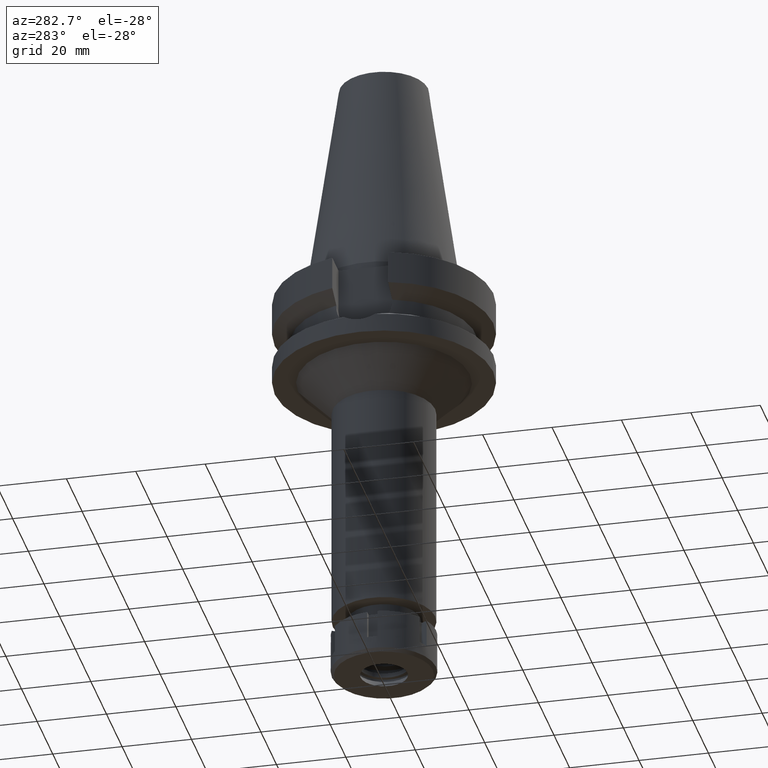
[diagram: clean part render]
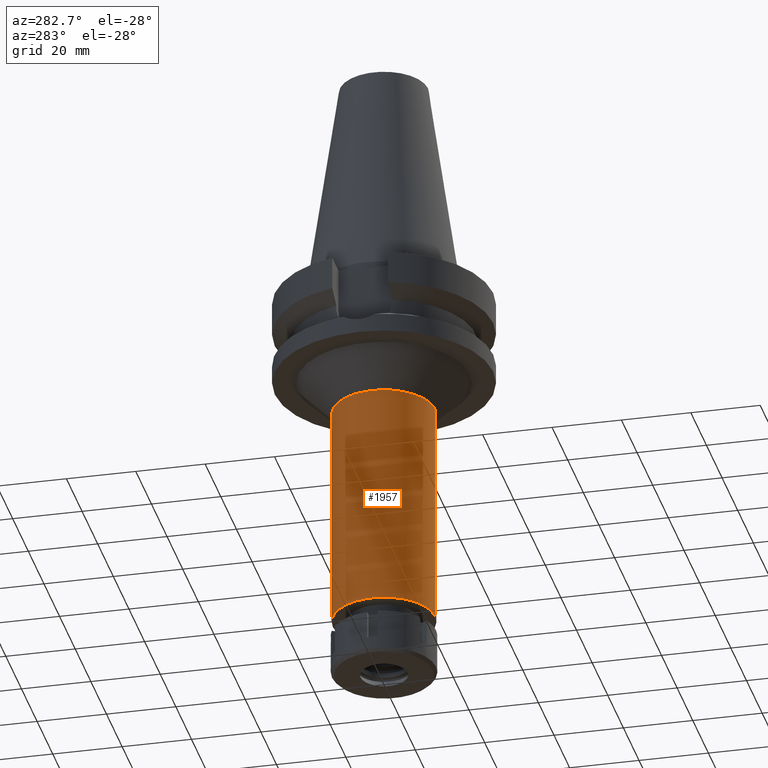
[diagram: same view with one face highlighted and labeled with its STEP entity id]
A machine part, auxiliary view. The second image highlights one B-rep face of the part: STEP entity #1957.
In plain terms, the highlighted cylindrical surface (partial cylindrical patch) has radius 14.75 mm, axis along (0, 0, -1).
Its self-contained STEP definition (entity closure, byte-faithful):
#110 = DIRECTION ( 'NONE',  ( 0.0000000000000000000, 0.0000000000000000000, -1.000000000000000000 ) ) ;
#225 = VERTEX_POINT ( 'NONE', #1830 ) ;
#307 = EDGE_CURVE ( 'NONE', #3594, #2919, #407, .T. ) ;
#326 = ORIENTED_EDGE ( 'NONE', *, *, #2400, .T. ) ;
#391 = CARTESIAN_POINT ( 'NONE',  ( 0.0000000000000000000, 14.75000000000000000, -37.00000000000000000 ) ) ;
#407 = LINE ( 'NONE', #391, #3052 ) ;
#780 = AXIS2_PLACEMENT_3D ( 'NONE', #1083, #1407, #3554 ) ;
#814 = CARTESIAN_POINT ( 'NONE',  ( 0.0000000000000000000, -14.75000000000000000, -37.00000000000000000 ) ) ;
#832 = ORIENTED_EDGE ( 'NONE', *, *, #307, .T. ) ;
#1083 = CARTESIAN_POINT ( 'NONE',  ( 0.0000000000000000000, 2.134804300274000180E-14, 74.31999999999999318 ) ) ;
#1188 = AXIS2_PLACEMENT_3D ( 'NONE', #2630, #110, #2356 ) ;
#1220 = DIRECTION ( 'NONE',  ( 0.0000000000000000000, 0.0000000000000000000, -1.000000000000000000 ) ) ;
#1257 = CIRCLE ( 'NONE', #3296, 14.75000000000000000 ) ;
#1303 = VECTOR ( 'NONE', #1220, 1000.000000000000000 ) ;
#1372 = VERTEX_POINT ( 'NONE', #814 ) ;
#1383 = DIRECTION ( 'NONE',  ( 0.0000000000000000000, 1.000000000000000000, 0.0000000000000000000 ) ) ;
#1407 = DIRECTION ( 'NONE',  ( 0.0000000000000000000, 0.0000000000000000000, -1.000000000000000000 ) ) ;
#1450 = CARTESIAN_POINT ( 'NONE',  ( 0.0000000000000000000, -14.75000000000000000, -37.00000000000000000 ) ) ;
#1725 = EDGE_LOOP ( 'NONE', ( #326, #3347, #2570, #832 ) ) ;
#1808 = DIRECTION ( 'NONE',  ( 0.0000000000000000000, 0.0000000000000000000, -1.000000000000000000 ) ) ;
#1830 = CARTESIAN_POINT ( 'NONE',  ( 0.0000000000000000000, -14.75000000000000000, -103.0000000000000000 ) ) ;
#1868 = EDGE_CURVE ( 'NONE', #1372, #3594, #1895, .T. ) ;
#1895 = CIRCLE ( 'NONE', #1188, 14.75000000000000000 ) ;
#1957 = ADVANCED_FACE ( 'NONE', ( #3314 ), #2755, .T. ) ;
#2219 = CARTESIAN_POINT ( 'NONE',  ( 0.0000000000000000000, 2.134804300274000180E-14, -103.0000000000000000 ) ) ;
#2356 = DIRECTION ( 'NONE',  ( 0.0000000000000000000, -1.000000000000000000, 0.0000000000000000000 ) ) ;
#2400 = EDGE_CURVE ( 'NONE', #2919, #225, #1257, .T. ) ;
#2570 = ORIENTED_EDGE ( 'NONE', *, *, #1868, .T. ) ;
#2602 = LINE ( 'NONE', #1450, #1303 ) ;
#2630 = CARTESIAN_POINT ( 'NONE',  ( 0.0000000000000000000, 0.0000000000000000000, -37.00000000000000000 ) ) ;
#2738 = EDGE_CURVE ( 'NONE', #1372, #225, #2602, .T. ) ;
#2755 = CYLINDRICAL_SURFACE ( 'NONE', #780, 14.75000000000000000 ) ;
#2808 = CARTESIAN_POINT ( 'NONE',  ( 0.0000000000000000000, 14.75000000000000000, -37.00000000000000000 ) ) ;
#2919 = VERTEX_POINT ( 'NONE', #2930 ) ;
#2930 = CARTESIAN_POINT ( 'NONE',  ( 0.0000000000000000000, 14.75000000000000000, -103.0000000000000000 ) ) ;
#3052 = VECTOR ( 'NONE', #1808, 1000.000000000000000 ) ;
#3296 = AXIS2_PLACEMENT_3D ( 'NONE', #2219, #3605, #1383 ) ;
#3314 = FACE_OUTER_BOUND ( 'NONE', #1725, .T. ) ;
#3347 = ORIENTED_EDGE ( 'NONE', *, *, #2738, .F. ) ;
#3554 = DIRECTION ( 'NONE',  ( 0.0000000000000000000, -1.000000000000000000, 0.0000000000000000000 ) ) ;
#3594 = VERTEX_POINT ( 'NONE', #2808 ) ;
#3605 = DIRECTION ( 'NONE',  ( 0.0000000000000000000, 0.0000000000000000000, 1.000000000000000000 ) ) ;